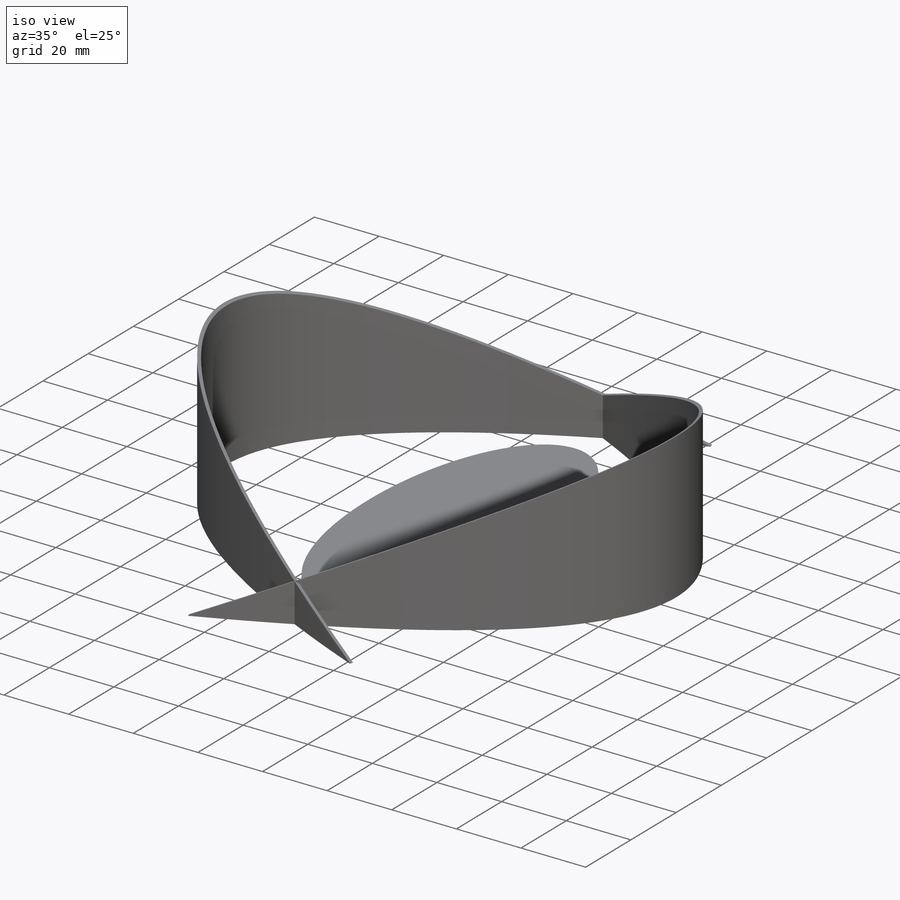
[diagram: iso view]
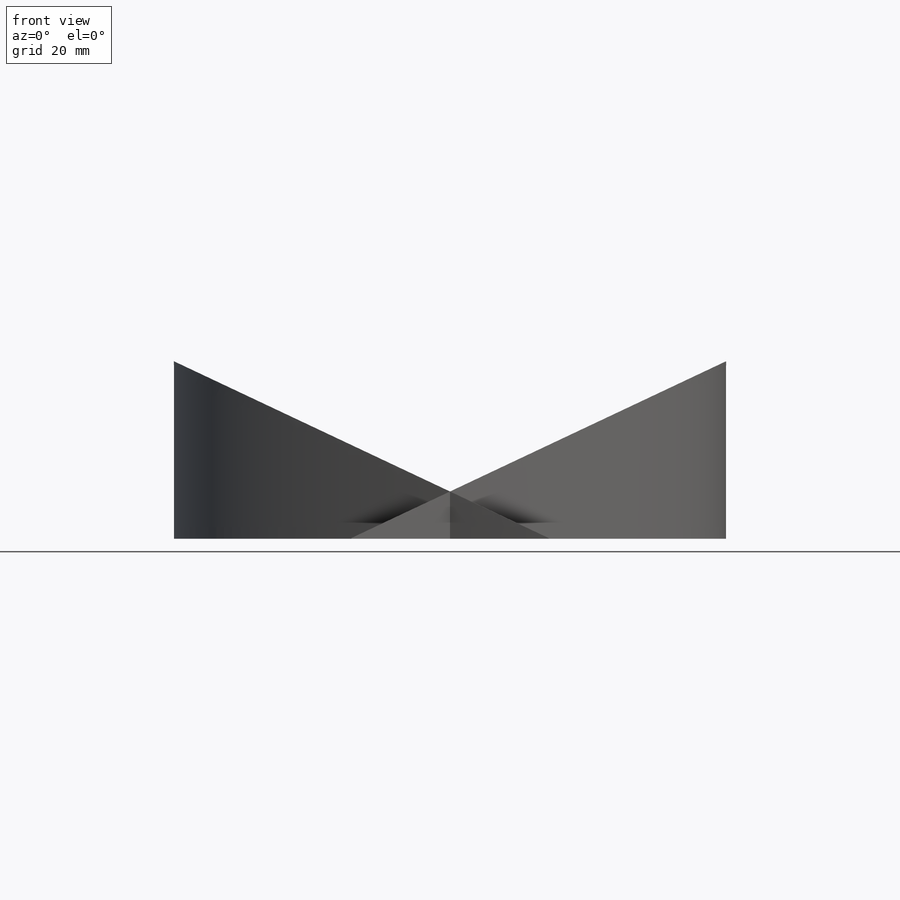
[diagram: front view]
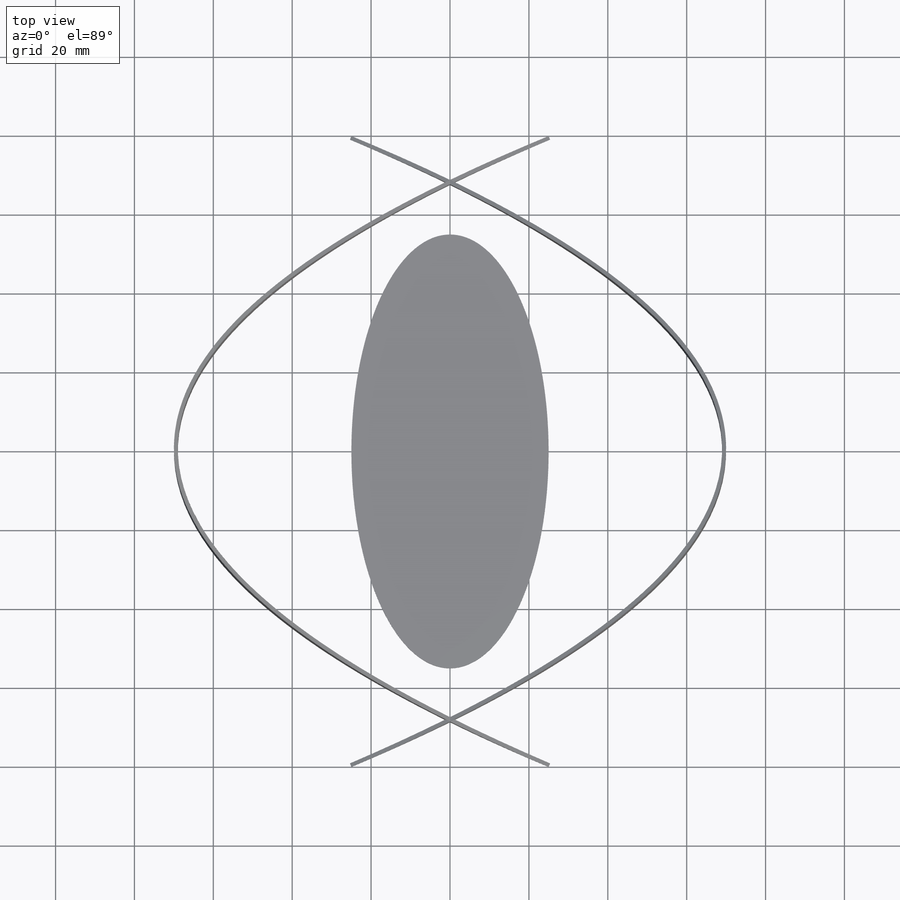
[diagram: top view]
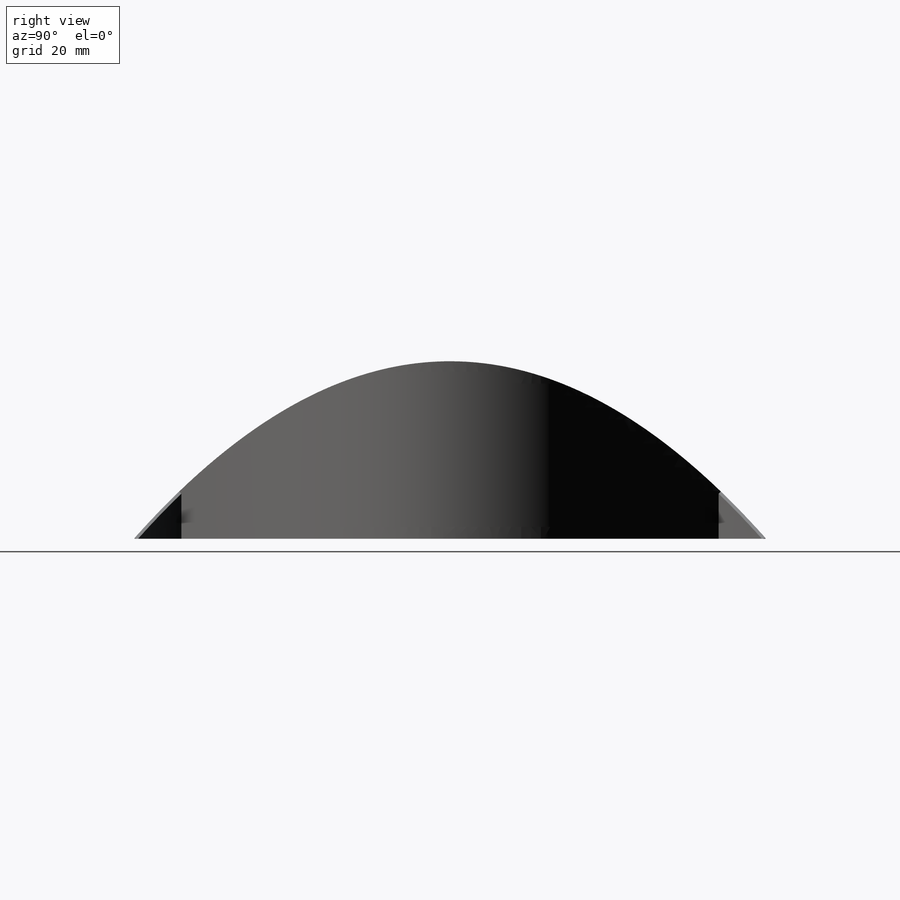
[diagram: right view]
SOLIDWORKS PART (.sldprt)
format: sldprt  version: not decoded by parser v0  size: 352,256 bytes
history: native  units: mm
features: sketch x3, extrude x2, material x1, cut_extrude x1, mirror x1 (+14 scaffold rows collapsed)
feature tree (22):
  scaffold x14  (default folders/planes/origin — collapsed)
  material  "Material <not specified>"
  sketch  "Sketch1"  dims[D1=50.0mm D2=110.0mm]
  extrude  "Extrude1"  Depth=2mm
  sketch  "Sketch2"  dims[c1.D1=25.0mm c1.D2=70.0mm c1.D3=45.0mm c1.D4=80.0mm c1.D5=80.0mm c2.D4=80.0mm c2.D1=45.0mm c3.D4=1.0mm]
  extrude  "Extrude2"  Depth=45mm
  sketch  "Sketch3"
  cut_extrude  "Cut-Extrude1"  Depth=165mm
  mirror  "Mirror1"
decode coverage: 5 of 7 modeling features carry decoded parameters
note: suppression state not decoded; provenance and decode notes live in map.json
